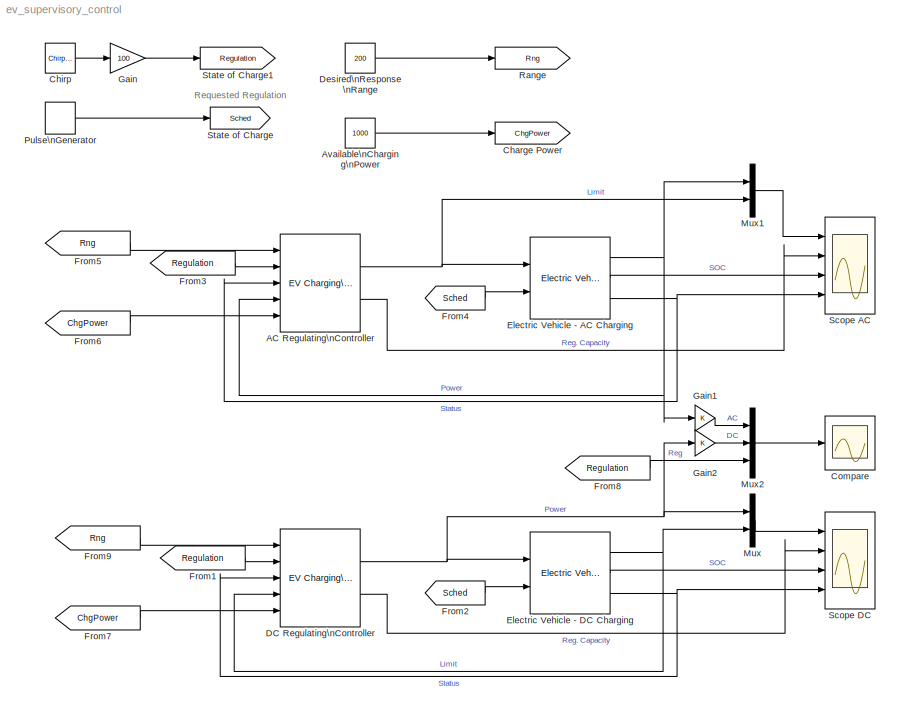
MODEL ev_supervisory_control
KIND model
BLOCK [Reference] AC Regulating\nController  REF=CampusEnergyModeling/Electric Vehicles/EV Charging\nSupervisory Control
  Ports = [5, 2]
  SID = 706
  SourceBlock = CampusEnergyModeling/Electric Vehicles/EV Charging\nSupervisory Control
  SourceType = EV Charging Supervisory Control
  ctype = AC
  ldsettings = on
  ramp = 2
  regtype = Two-sided
  sweepint = 300
  sweepramp = 1
  thr = 1.0
BLOCK [Constant] Available\nCharging\nPower
  SID = 41
  Value = 1000
BLOCK [Goto] Charge Power
  GotoTag = ChgPower
  SID = 158
BLOCK [Reference] Chirp  REF=simulink/Sources/Chirp Signal
  Ports = [0, 1]
  SID = 36
  SourceBlock = simulink/Sources/Chirp Signal
  SourceType = chirp
  T = 10e3
  VectorParams1D = on
  f1 = 1/2000
  f2 = 1/200
BLOCK [Scope] Compare
  DataFormat = StructureWithTime
  Floating = off
  LegendLocations = 0.70527     0.71709     0.21253     0.16454
  LimitDataPoints = off
  NumInputPorts = 1
  Ports = [1]
  SID = 151
  SampleTime = 0
  SaveName = ScopeData2
  ShowLegends = on
  TimeRange = 10000
  YMax = 900
  YMin = -100
  ZoomMode = yonly
BLOCK [Reference] DC Regulating\nController  REF=CampusEnergyModeling/Electric Vehicles/EV Charging\nSupervisory Control
  Ports = [5, 2]
  SID = 707
  SourceBlock = CampusEnergyModeling/Electric Vehicles/EV Charging\nSupervisory Control
  SourceType = EV Charging Supervisory Control
  ctype = DC
  ldsettings = off
  ramp = 2
  regtype = Two-sided
  sweepint = 600
  sweepramp = 2
  thr = 1.0
BLOCK [Constant] Desired\nResponse\nRange
  SID = 157
  Value = 200
BLOCK [Reference] Electric Vehicle - AC Charging  REF=CampusEnergyModeling/Electric Vehicles/Electric Vehicle
  Ports = [2, 3]
  SID = 43
  SourceBlock = CampusEnergyModeling/Electric Vehicles/Electric Vehicle
  SourceType = Electric Vehicle
  battEff = 0.98
  capacity = 1000
  chargerEff = 0.96
  ctype = AC
  initSOC = 0.1
  profile = off
  profileRate = [0.10 0.20 1.00 1.00 0.01 0.00]
  profileSOC = [0.00 0.10 0.20 0.80 0.99 1.00]
  rating = 1000
BLOCK [Reference] Electric Vehicle - DC Charging  REF=CampusEnergyModeling/Electric Vehicles/Electric Vehicle
  Ports = [2, 3]
  SID = 8
  SourceBlock = CampusEnergyModeling/Electric Vehicles/Electric Vehicle
  SourceType = Electric Vehicle
  battEff = 0.98
  capacity = 1000
  chargerEff = 0.96
  ctype = DC
  initSOC = 0.1
  profile = off
  profileRate = [0.10 0.20 1.00 1.00 0.01 0.00]
  profileSOC = [0.00 0.10 0.20 0.80 0.99 1.00]
  rating = 6240
BLOCK [From] From1
  GotoTag = Regulation
  SID = 283
BLOCK [From] From2
  GotoTag = Sched
  SID = 31
BLOCK [From] From3
  GotoTag = Regulation
  SID = 44
BLOCK [From] From4
  GotoTag = Sched
  SID = 45
BLOCK [From] From5
  GotoTag = Rng
  SID = 160
BLOCK [From] From6
  GotoTag = ChgPower
  SID = 161
BLOCK [From] From7
  GotoTag = ChgPower
  SID = 162
BLOCK [From] From8
  GotoTag = Regulation
  SID = 167
BLOCK [From] From9
  GotoTag = Rng
  SID = 284
BLOCK [Gain] Gain
  Gain = 100
  OutDataTypeStr = Inherit: Inherit via internal rule
  ParamDataTypeStr = Inherit: Inherit via internal rule
  SID = 35
  SaturateOnIntegerOverflow = off
BLOCK [Gain] Gain1
  OutDataTypeStr = Inherit: Inherit via internal rule
  ParamDataTypeStr = Inherit: Inherit via internal rule
  SID = 153
  SaturateOnIntegerOverflow = off
BLOCK [Gain] Gain2
  OutDataTypeStr = Inherit: Inherit via internal rule
  ParamDataTypeStr = Inherit: Inherit via internal rule
  SID = 154
  SaturateOnIntegerOverflow = off
BLOCK [Mux] Mux
  DisplayOption = bar
  Inputs = 2
  Ports = [2, 1]
  SID = 25
BLOCK [Mux] Mux1
  DisplayOption = bar
  Inputs = 2
  Ports = [2, 1]
  SID = 48
BLOCK [Mux] Mux2
  DisplayOption = bar
  Inputs = 3
  Ports = [3, 1]
  SID = 152
BLOCK [DiscretePulseGenerator] Pulse\nGenerator
  Period = 10000
  PhaseDelay = 1000
  Ports = [0, 1]
  PulseType = Time based
  PulseWidth = 80
  SID = 28
BLOCK [Goto] Range
  GotoTag = Rng
  SID = 159
BLOCK [Scope] Scope AC
  DataFormat = StructureWithTime
  Floating = off
  LegendLocations = 0.67802     0.90691     0.23978    0.045802\n0.57584     0.69211      0.3406    0.025869\n0.69846     0.45802     0.21798    0.025869\n0.67666     0.22265     0.23978    0.025869
  LimitDataPoints = off
  NumInputPorts = 4
  Ports = [4]
  SID = 49
  SampleTime = 0
  SaveName = ScopeData1
  ShowLegends = on
  TimeRange = 10000
  YMax = 1000~500~1~0
  YMin = 0~0~0~-1
  ZoomMode = xonly
BLOCK [Scope] Scope DC
  DataFormat = StructureWithTime
  Floating = off
  LegendLocations = 0.67802     0.90691     0.23978    0.045802\n0.57584     0.69211      0.3406    0.025869\n0.69846     0.45802     0.21798    0.025869\n0.67666     0.22265     0.23978    0.025869
  LimitDataPoints = off
  NumInputPorts = 4
  Ports = [4]
  SID = 6
  SampleTime = 0
  ShowLegends = on
  TimeRange = 10000
  YMax = 1000~500~1~0
  YMin = 0~0~0~-1
  ZoomMode = xonly
BLOCK [Goto] State of Charge
  GotoTag = Sched
  SID = 30
BLOCK [Goto] State of Charge1
  GotoTag = Regulation
  SID = 37
ANNOTATION (root): Requested Regulation
NET AC Regulating\nController:1 -> Electric Vehicle - AC Charging:1, Mux1:2
LINE AC Regulating\nController:2 -> Scope AC:2
LINE Available\nCharging\nPower:1 -> Charge Power:1
LINE Chirp:1 -> Gain:1
NET DC Regulating\nController:1 -> Electric Vehicle - DC Charging:1, Gain2:1, Mux:1
LINE DC Regulating\nController:2 -> Scope DC:2
LINE Desired\nResponse\nRange:1 -> Range:1
NET Electric Vehicle - AC Charging:1 -> AC Regulating\nController:4, Gain1:1, Mux1:1
LINE Electric Vehicle - AC Charging:2 -> Scope AC:3
NET Electric Vehicle - AC Charging:3 -> AC Regulating\nController:3, Scope AC:4
NET Electric Vehicle - DC Charging:1 -> DC Regulating\nController:4, Mux:2
LINE Electric Vehicle - DC Charging:2 -> Scope DC:3
NET Electric Vehicle - DC Charging:3 -> DC Regulating\nController:3, Scope DC:4
LINE From1:1 -> DC Regulating\nController:2
LINE From2:1 -> Electric Vehicle - DC Charging:2
LINE From3:1 -> AC Regulating\nController:2
LINE From4:1 -> Electric Vehicle - AC Charging:2
LINE From5:1 -> AC Regulating\nController:1
LINE From6:1 -> AC Regulating\nController:5
LINE From7:1 -> DC Regulating\nController:5
LINE From8:1 -> Mux2:3
LINE From9:1 -> DC Regulating\nController:1
LINE Gain1:1 -> Mux2:1
LINE Gain2:1 -> Mux2:2
LINE Gain:1 -> State of Charge1:1
LINE Mux1:1 -> Scope AC:1
LINE Mux2:1 -> Compare:1
LINE Mux:1 -> Scope DC:1
LINE Pulse\nGenerator:1 -> State of Charge:1
note: NET lines group one-source signal fan-out (src -> all destinations, sorted); 1:1 wires keep LINE
